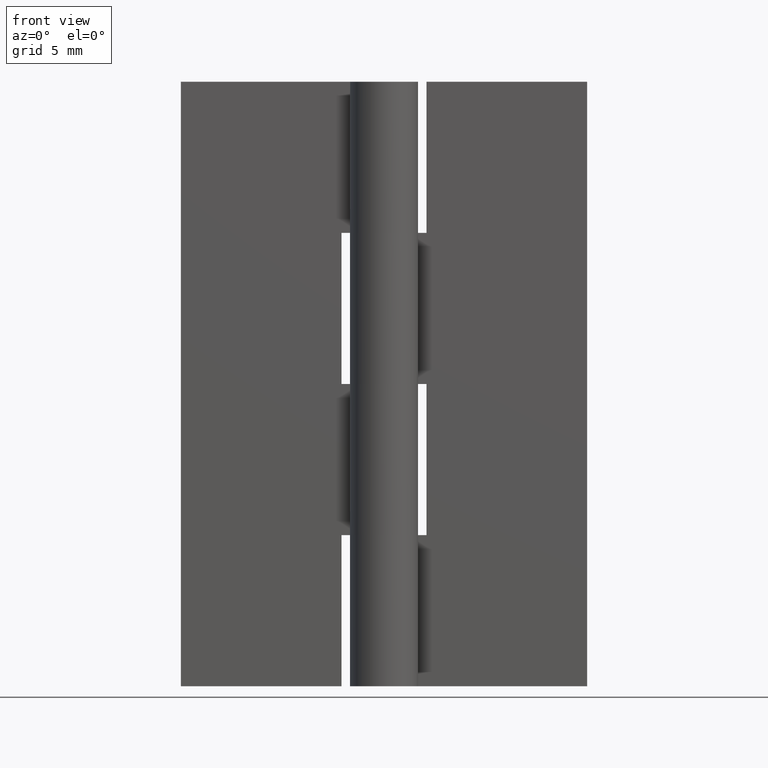
[diagram: clean part render]
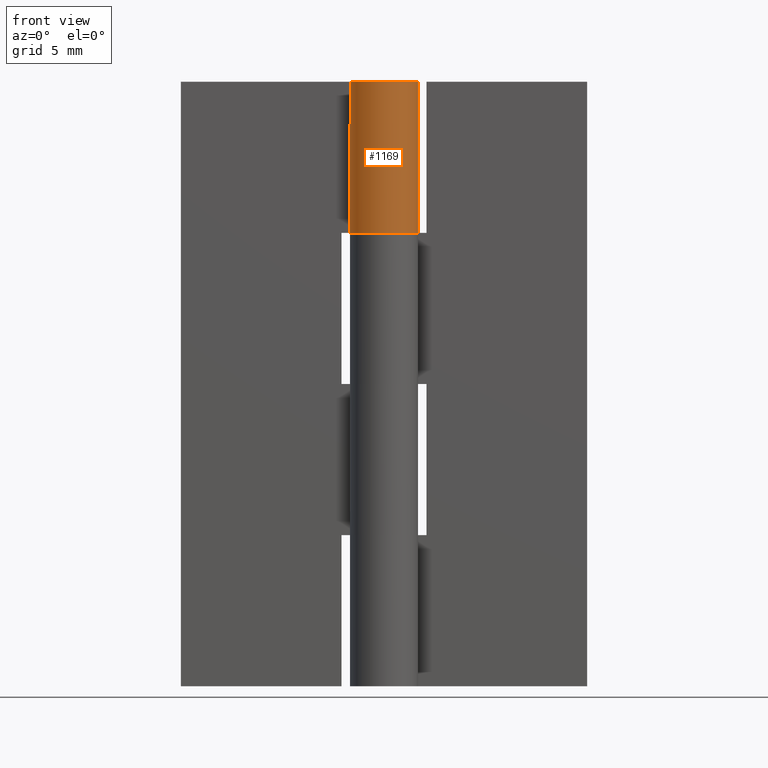
[diagram: same view with one face highlighted and labeled with its STEP entity id]
A machine part, front view. The second image highlights one B-rep face of the part: STEP entity #1169.
In plain terms, the highlighted face is a freeform B-spline surface patch.
Its self-contained STEP definition (entity closure, byte-faithful):
#746=CARTESIAN_POINT('',(0.0,1.800003000000050,24.0));
#747=VERTEX_POINT('',#746);
#753=CARTESIAN_POINT('',(-1.528891033289545,0.950001583333338,24.0));
#754=VERTEX_POINT('',#753);
#755=CARTESIAN_POINT('',(0.0,1.800003000000000,24.0));
#756=CARTESIAN_POINT('',(1.392803374264187,1.800003000000000,24.000000000000007));
#757=CARTESIAN_POINT('',(1.742384017568445,0.451783947624354,24.0));
#758=CARTESIAN_POINT('',(2.091964660872704,-0.896435104751292,24.000000000000007));
#759=CARTESIAN_POINT('',(0.874644241964768,-1.573215894277348,24.0));
#760=CARTESIAN_POINT('',(-0.342676176943167,-2.249996683803405,24.000000000000007));
#761=CARTESIAN_POINT('',(-1.303328939991625,-1.241508950507127,24.0));
#762=CARTESIAN_POINT('',(-2.263981703040084,-0.233021217210849,24.000000000000007));
#763=CARTESIAN_POINT('',(-1.528891033289540,0.950001583333334,24.0));
#771=(BOUNDED_CURVE()B_SPLINE_CURVE(2,(#755,#756,#757,#758,#759,#760,#761,#762,#763),.UNSPECIFIED.,.F.,.U.)B_SPLINE_CURVE_WITH_KNOTS((3,2,2,2,3),(0.0,0.250000000000000,0.500000000000000,0.750000000000000,1.0),.UNSPECIFIED.)CURVE()GEOMETRIC_REPRESENTATION_ITEM()RATIONAL_B_SPLINE_CURVE((1.0,0.790882628363956,1.0,0.790882628363956,1.0,0.790882628363956,1.0,0.790882628363956,1.0))REPRESENTATION_ITEM(''));
#772=EDGE_CURVE('',#747,#754,#771,.T.);
#1012=CARTESIAN_POINT('',(1.102148E-016,1.800003000000000,32.0));
#1013=VERTEX_POINT('',#1012);
#1056=CARTESIAN_POINT('',(-1.528888485142065,0.950000000000000,32.0));
#1057=VERTEX_POINT('',#1056);
#1063=CARTESIAN_POINT('',(-1.528888485142065,0.950000000000000,32.0));
#1064=CARTESIAN_POINT('',(-2.263977381650527,-0.233023902377307,31.999999999999996));
#1065=CARTESIAN_POINT('',(-1.303325127827986,-1.241511319257688,32.0));
#1066=CARTESIAN_POINT('',(-0.342672874005446,-2.249998736138069,31.999999999999996));
#1067=CARTESIAN_POINT('',(0.874645516038505,-1.573216685944016,32.0));
#1068=CARTESIAN_POINT('',(2.091963906082458,-0.896434635749962,31.999999999999996));
#1069=CARTESIAN_POINT('',(1.742382753552281,0.451784733041583,32.0));
#1070=CARTESIAN_POINT('',(1.392801601022104,1.800004101833125,31.999999999999996));
#1071=CARTESIAN_POINT('',(1.102148E-016,1.800003000000000,32.0));
#1079=(BOUNDED_CURVE()B_SPLINE_CURVE(2,(#1063,#1064,#1065,#1066,#1067,#1068,#1069,#1070,#1071),.UNSPECIFIED.,.F.,.U.)B_SPLINE_CURVE_WITH_KNOTS((3,2,2,2,3),(0.0,0.250000000000000,0.500000000000000,0.750000000000000,1.0),.UNSPECIFIED.)CURVE()GEOMETRIC_REPRESENTATION_ITEM()RATIONAL_B_SPLINE_CURVE((1.0,0.790882628363956,1.0,0.790882628363956,1.0,0.790882628363956,1.0,0.790882628363956,1.0))REPRESENTATION_ITEM(''));
#1080=EDGE_CURVE('',#1057,#1013,#1079,.T.);
#1133=CARTESIAN_POINT('',(-1.500996981378368,0.993488229372661,32.200000000000003));
#1134=CARTESIAN_POINT('',(-1.500996981378368,0.993488229372661,23.795000000000002));
#1135=CARTESIAN_POINT('',(-2.742552575008227,-0.882297656312770,32.200000000000003));
#1136=CARTESIAN_POINT('',(-2.742552575008227,-0.882297656312770,23.794999999999995));
#1137=CARTESIAN_POINT('',(-0.640172438219063,-1.682316869484954,32.200000000000003));
#1138=CARTESIAN_POINT('',(-0.640172438219063,-1.682316869484954,23.795000000000002));
#1139=CARTESIAN_POINT('',(1.462207698570101,-2.482336082657139,32.200000000000003));
#1140=CARTESIAN_POINT('',(1.462207698570101,-2.482336082657139,23.794999999999995));
#1141=CARTESIAN_POINT('',(1.781749244369752,-0.255695972195138,32.200000000000003));
#1142=CARTESIAN_POINT('',(1.781749244369752,-0.255695972195138,23.795000000000002));
#1143=CARTESIAN_POINT('',(2.101290790169404,1.970944138266863,32.200000000000003));
#1144=CARTESIAN_POINT('',(2.101290790169404,1.970944138266863,23.794999999999995));
#1145=CARTESIAN_POINT('',(-0.141226607687408,1.794454191471631,32.200000000000003));
#1146=CARTESIAN_POINT('',(-0.141226607687408,1.794454191471631,23.795000000000002));
#1154=(BOUNDED_SURFACE()B_SPLINE_SURFACE(1,2,((#1133,#1135,#1137,#1139,#1141,#1143,#1145),(#1134,#1136,#1138,#1140,#1142,#1144,#1146)),.UNSPECIFIED.,.F.,.F.,.U.)B_SPLINE_SURFACE_WITH_KNOTS((2,2),(3,2,2,3),(0.0,8.405000000000008),(0.0,3.459974212815107,6.919948425630214,10.379922638445320),.UNSPECIFIED.)GEOMETRIC_REPRESENTATION_ITEM()RATIONAL_B_SPLINE_SURFACE(((1.0,0.624788514543960,1.0,0.624788514543960,1.0,0.624788514543960,1.0),(1.0,0.624788514543960,1.0,0.624788514543960,1.0,0.624788514543960,1.0)))REPRESENTATION_ITEM('')SURFACE());
#1155=ORIENTED_EDGE('',*,*,#772,.F.);
#1156=CARTESIAN_POINT('',(1.102148E-016,1.800003000000000,32.0));
#1157=CARTESIAN_POINT('',(0.0,1.800003000000050,24.0));
#1158=QUASI_UNIFORM_CURVE('',1,(#1156,#1157),.UNSPECIFIED.,.F.,.U.);
#1159=EDGE_CURVE('',#1013,#747,#1158,.T.);
#1160=ORIENTED_EDGE('',*,*,#1159,.F.);
#1161=ORIENTED_EDGE('',*,*,#1080,.F.);
#1162=CARTESIAN_POINT('',(-1.528888485142065,0.950000000000000,32.0));
#1163=CARTESIAN_POINT('',(-1.528891033289545,0.950001583333338,24.0));
#1164=QUASI_UNIFORM_CURVE('',1,(#1162,#1163),.UNSPECIFIED.,.F.,.U.);
#1165=EDGE_CURVE('',#1057,#754,#1164,.T.);
#1166=ORIENTED_EDGE('',*,*,#1165,.T.);
#1167=EDGE_LOOP('',(#1155,#1160,#1161,#1166));
#1168=FACE_OUTER_BOUND('',#1167,.T.);
#1169=ADVANCED_FACE('',(#1168),#1154,.T.);